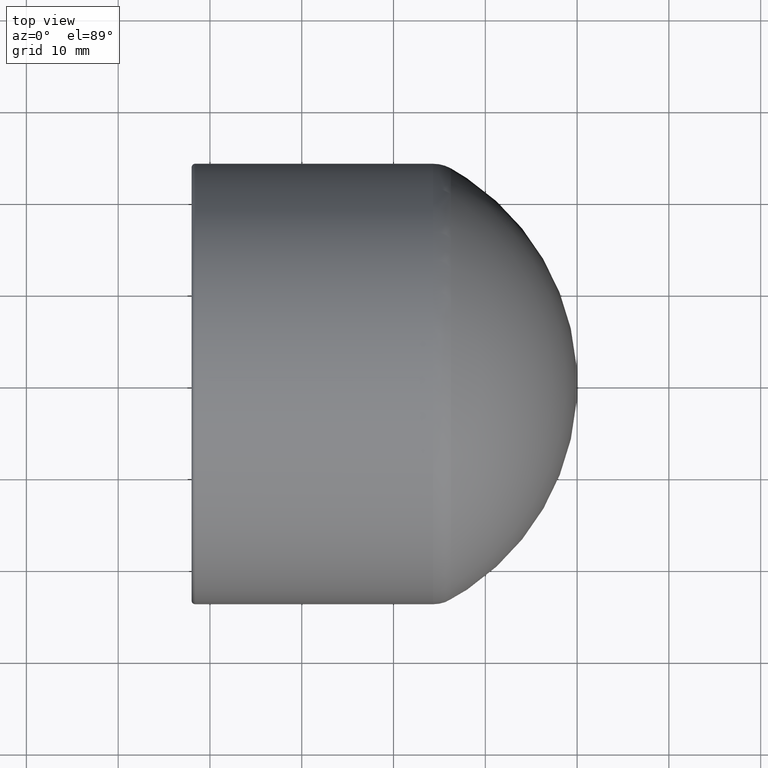
[diagram: clean part render]
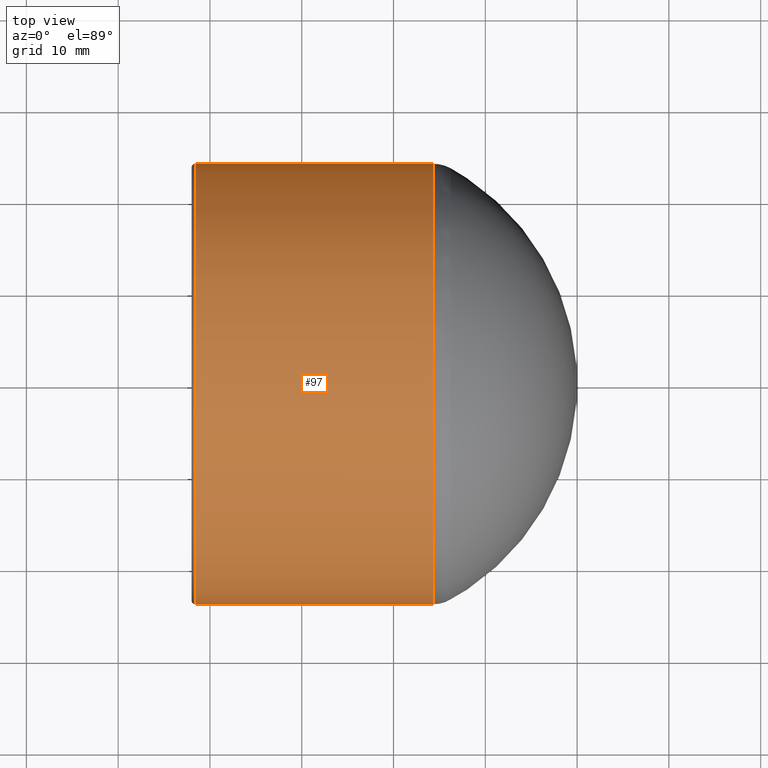
[diagram: same view with one face highlighted and labeled with its STEP entity id]
A machine part, top view. The second image highlights one B-rep face of the part: STEP entity #97.
In plain terms, the highlighted cylindrical surface (bore or boss wall) has radius 24 mm, axis along (1, 0, 0).
Its self-contained STEP definition (entity closure, byte-faithful):
#19=CYLINDRICAL_SURFACE('',#110,24.);
#22=FACE_BOUND('',#40,.T.);
#29=FACE_OUTER_BOUND('',#39,.T.);
#39=EDGE_LOOP('',(#79));
#40=EDGE_LOOP('',(#80));
#53=CIRCLE('',#108,24.);
#55=CIRCLE('',#111,24.);
#61=VERTEX_POINT('',#162);
#63=VERTEX_POINT('',#167);
#69=EDGE_CURVE('',#61,#61,#53,.T.);
#71=EDGE_CURVE('',#63,#63,#55,.T.);
#79=ORIENTED_EDGE('',*,*,#71,.F.);
#80=ORIENTED_EDGE('',*,*,#69,.F.);
#97=ADVANCED_FACE('',(#29,#22),#19,.T.);
#108=AXIS2_PLACEMENT_3D('',#163,#128,#129);
#110=AXIS2_PLACEMENT_3D('',#166,#132,#133);
#111=AXIS2_PLACEMENT_3D('',#168,#134,#135);
#128=DIRECTION('center_axis',(1.,1.36772804700585E-16,0.));
#129=DIRECTION('ref_axis',(1.38777878078145E-16,-1.,1.83697019872103E-16));
#132=DIRECTION('center_axis',(1.,1.36772804700585E-16,0.));
#133=DIRECTION('ref_axis',(-9.25185853854297E-17,1.,0.));
#134=DIRECTION('center_axis',(-1.,-1.36772804700585E-16,0.));
#135=DIRECTION('ref_axis',(1.3588667228485E-16,-1.,1.83697019872103E-16));
#162=CARTESIAN_POINT('',(-15.7022694493688,24.,-1.46957615897682E-15));
#163=CARTESIAN_POINT('Origin',(-15.7022694493688,-2.14764343275448E-15,
0.));
#166=CARTESIAN_POINT('Origin',(-28.35,-3.87750901326158E-15,0.));
#167=CARTESIAN_POINT('',(-41.6,24.,-7.34788079488412E-15));
#168=CARTESIAN_POINT('Origin',(-41.6,-5.68974867554433E-15,0.));